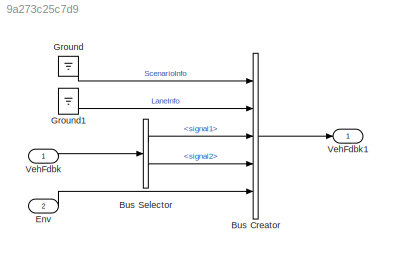
MODEL slx_9a273c25c7d9
KIND model
CONFIG AbsTol = auto
CONFIG EnableMultiTasking = off
CONFIG FixedStep = auto
CONFIG MaxStep = auto
CONFIG MinStep = auto
CONFIG RelTol = 1e-3
CONFIG SampleTimeConstraint = Unconstrained
CONFIG Solver = VariableStepAuto
CONFIG SolverName = VariableStepAuto
CONFIG StartTime = 0.0
CONFIG StopTime = 10.0
BLOCK [BusCreator] Bus Creator
  DisplayOption = bar
  InheritFromInputs = on
  Inputs = 5
  Ports = [5, 1]
BLOCK [BusSelector] Bus Selector
  OutputSignals = signal1,signal2
  Ports = [1, 2]
BLOCK [Inport] Env
  Port = 2
BLOCK [Ground] Ground
BLOCK [Ground] Ground1
BLOCK [Inport] VehFdbk
BLOCK [Outport] VehFdbk1
LINE Bus Creator:1 -> VehFdbk1:1
LINE Bus Selector:1 -> Bus Creator:3
LINE Bus Selector:2 -> Bus Creator:4
LINE Env:1 -> Bus Creator:5
LINE Ground1:1 -> Bus Creator:2
LINE Ground:1 -> Bus Creator:1
LINE VehFdbk:1 -> Bus Selector:1
